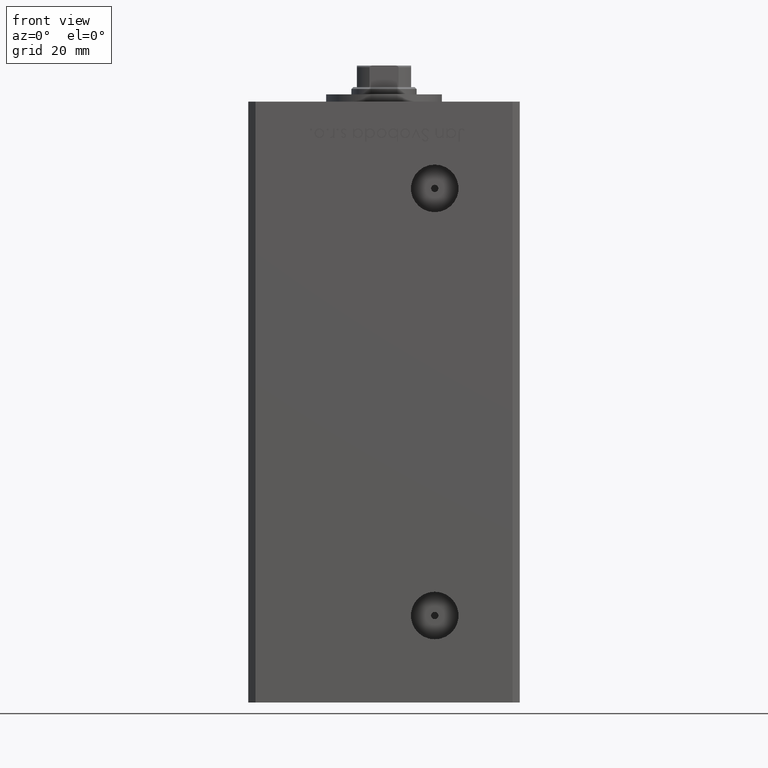
[diagram: clean part render]
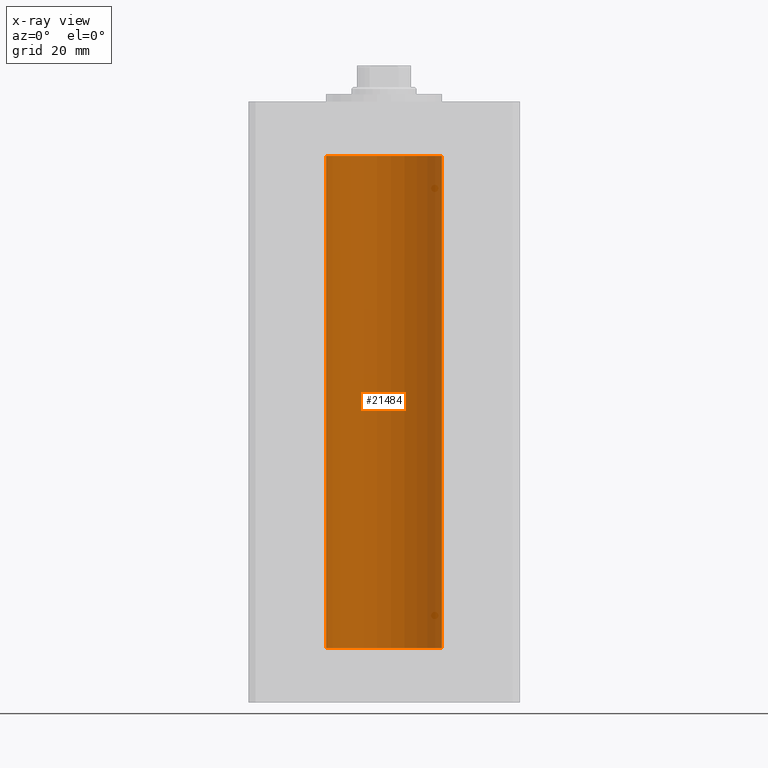
[diagram: x-ray — body ghosted, one internal face saturated and labeled with its STEP entity id]
A machine part, front view, then the same camera in x-ray: the body is ghosted and one INTERNAL B-rep face — a face not visible from any outside direction — is saturated and labeled: STEP entity #21484.
In plain terms, the highlighted cylindrical surface (partial cylindrical patch) has radius 16 mm, axis along (-0, -0, -1).
Its self-contained STEP definition (entity closure, byte-faithful):
#3162 = EDGE_LOOP ( 'NONE', ( #17525, #23237, #46541, #22253 ) ) ;
#4033 = CARTESIAN_POINT ( 'NONE',  ( 16.00000000000000000, 1.959434878635765131E-15, 0.000000000000000000 ) ) ;
#4164 = DIRECTION ( 'NONE',  ( -1.000000000000000000, 0.000000000000000000, 0.000000000000000000 ) ) ;
#5255 = CARTESIAN_POINT ( 'NONE',  ( 16.00000000000000000, 1.959434878635765131E-15, 136.0000000000000000 ) ) ;
#7550 = EDGE_CURVE ( 'NONE', #33636, #47948, #10983, .T. ) ;
#7893 = CARTESIAN_POINT ( 'NONE',  ( -16.00000000000000000, 0.000000000000000000, 136.0000000000000000 ) ) ;
#10289 = AXIS2_PLACEMENT_3D ( 'NONE', #30941, #14308, #31198 ) ;
#10415 = EDGE_CURVE ( 'NONE', #14684, #47948, #25958, .T. ) ;
#10983 = CIRCLE ( 'NONE', #24463, 16.00000000000000000 ) ;
#11184 = DIRECTION ( 'NONE',  ( -0.000000000000000000, -0.000000000000000000, -1.000000000000000000 ) ) ;
#12783 = EDGE_CURVE ( 'NONE', #19367, #33636, #14601, .T. ) ;
#12895 = CARTESIAN_POINT ( 'NONE',  ( 0.000000000000000000, 0.000000000000000000, 136.0000000000000000 ) ) ;
#14308 = DIRECTION ( 'NONE',  ( -0.000000000000000000, 0.000000000000000000, 1.000000000000000000 ) ) ;
#14601 = LINE ( 'NONE', #51783, #15353 ) ;
#14684 = VERTEX_POINT ( 'NONE', #7893 ) ;
#15353 = VECTOR ( 'NONE', #11184, 1000.000000000000000 ) ;
#16997 = CARTESIAN_POINT ( 'NONE',  ( -16.00000000000000000, 0.000000000000000000, 136.0000000000000000 ) ) ;
#17525 = ORIENTED_EDGE ( 'NONE', *, *, #12783, .F. ) ;
#18147 = DIRECTION ( 'NONE',  ( 1.000000000000000000, 0.000000000000000000, 0.000000000000000000 ) ) ;
#19367 = VERTEX_POINT ( 'NONE', #5255 ) ;
#20547 = CYLINDRICAL_SURFACE ( 'NONE', #44963, 16.00000000000000000 ) ;
#21484 = ADVANCED_FACE ( 'NONE', ( #23987 ), #20547, .F. ) ;
#22253 = ORIENTED_EDGE ( 'NONE', *, *, #7550, .F. ) ;
#22361 = CARTESIAN_POINT ( 'NONE',  ( 0.000000000000000000, 0.000000000000000000, 0.000000000000000000 ) ) ;
#23237 = ORIENTED_EDGE ( 'NONE', *, *, #43136, .T. ) ;
#23987 = FACE_OUTER_BOUND ( 'NONE', #3162, .T. ) ;
#24463 = AXIS2_PLACEMENT_3D ( 'NONE', #22361, #38459, #18147 ) ;
#25958 = LINE ( 'NONE', #16997, #43910 ) ;
#30941 = CARTESIAN_POINT ( 'NONE',  ( 0.000000000000000000, 0.000000000000000000, 136.0000000000000000 ) ) ;
#31198 = DIRECTION ( 'NONE',  ( 1.000000000000000000, 0.000000000000000000, 0.000000000000000000 ) ) ;
#31389 = CIRCLE ( 'NONE', #10289, 16.00000000000000000 ) ;
#33606 = DIRECTION ( 'NONE',  ( -0.000000000000000000, -0.000000000000000000, -1.000000000000000000 ) ) ;
#33636 = VERTEX_POINT ( 'NONE', #4033 ) ;
#38459 = DIRECTION ( 'NONE',  ( -0.000000000000000000, 0.000000000000000000, 1.000000000000000000 ) ) ;
#38898 = CARTESIAN_POINT ( 'NONE',  ( -16.00000000000000000, 0.000000000000000000, 0.000000000000000000 ) ) ;
#43136 = EDGE_CURVE ( 'NONE', #19367, #14684, #31389, .T. ) ;
#43910 = VECTOR ( 'NONE', #33606, 1000.000000000000000 ) ;
#44963 = AXIS2_PLACEMENT_3D ( 'NONE', #12895, #48737, #4164 ) ;
#46541 = ORIENTED_EDGE ( 'NONE', *, *, #10415, .T. ) ;
#47948 = VERTEX_POINT ( 'NONE', #38898 ) ;
#48737 = DIRECTION ( 'NONE',  ( -0.000000000000000000, -0.000000000000000000, -1.000000000000000000 ) ) ;
#51783 = CARTESIAN_POINT ( 'NONE',  ( 16.00000000000000000, 1.959434878635765131E-15, 136.0000000000000000 ) ) ;